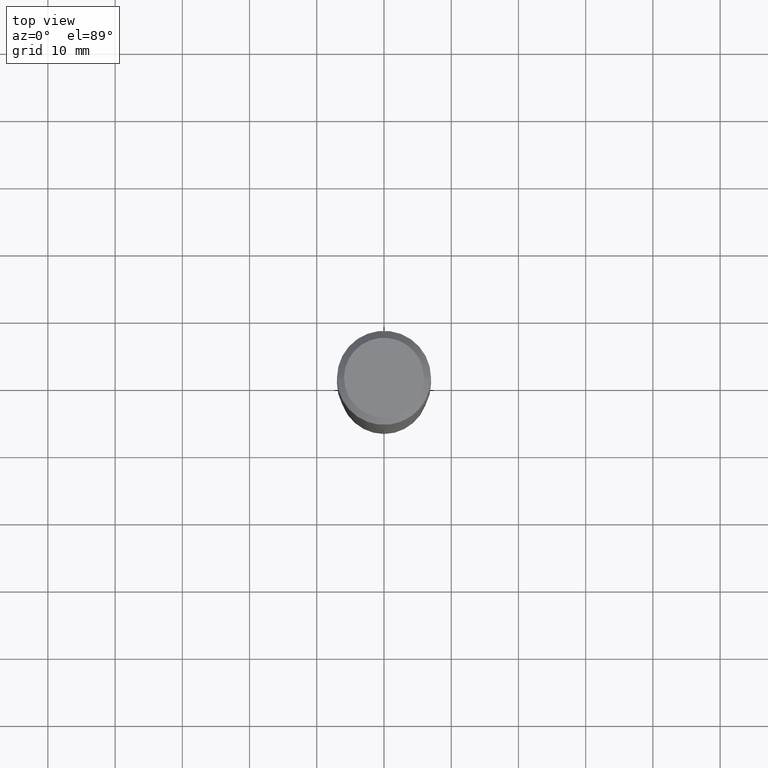
[diagram: clean part render]
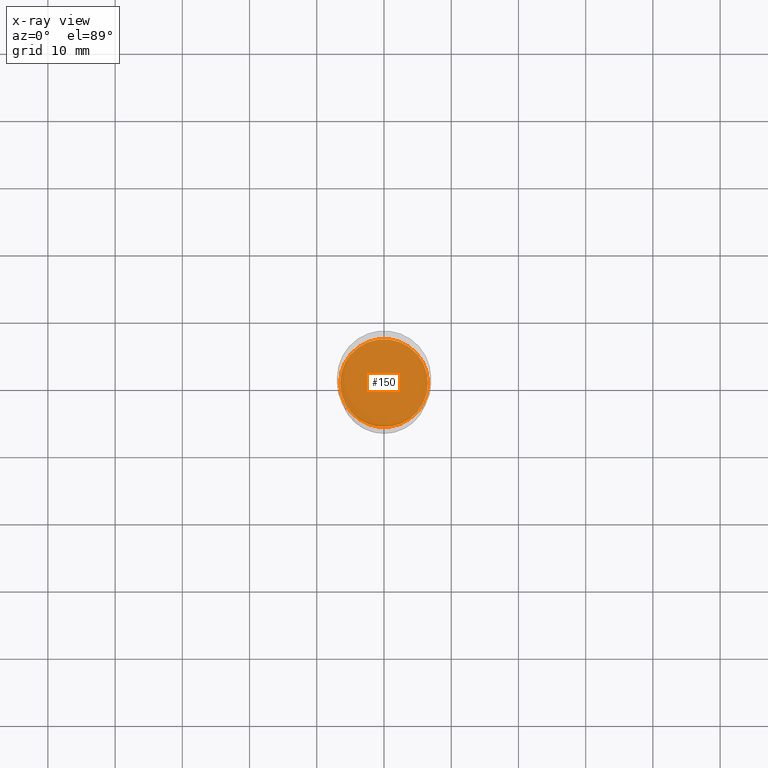
[diagram: x-ray — body ghosted, one internal face saturated and labeled with its STEP entity id]
A machine part, top view, then the same camera in x-ray: the body is ghosted and one INTERNAL B-rep face — a face not visible from any outside direction — is saturated and labeled: STEP entity #150.
In plain terms, the highlighted planar face has unit normal (-0, 0, 1).
Its self-contained STEP definition (entity closure, byte-faithful):
#11 = DIRECTION ( 'NONE',  ( -2.445468806185136597E-29, 3.491481338843145583E-15, 1.000000000000000000 ) ) ;
#17 = DIRECTION ( 'NONE',  ( 1.000000000000000000, -6.982962677686266711E-15, 0.000000000000000000 ) ) ;
#26 = ORIENTED_EDGE ( 'NONE', *, *, #167, .F. ) ;
#80 = AXIS2_PLACEMENT_3D ( 'NONE', #92, #11, #17 ) ;
#92 = CARTESIAN_POINT ( 'NONE',  ( 4.525095478964976833E-29, -6.460637069395356787E-15, -1.850400000000000045 ) ) ;
#114 = AXIS2_PLACEMENT_3D ( 'NONE', #285, #430, #132 ) ;
#132 = DIRECTION ( 'NONE',  ( 1.000000000000000000, -6.982962677686266711E-15, 0.000000000000000000 ) ) ;
#149 = EDGE_LOOP ( 'NONE', ( #157, #26 ) ) ;
#150 = ADVANCED_FACE ( 'NONE', ( #202 ), #152, .F. ) ;
#152 = PLANE ( 'NONE',  #294 ) ;
#157 = ORIENTED_EDGE ( 'NONE', *, *, #173, .F. ) ;
#167 = EDGE_CURVE ( 'NONE', #402, #444, #319, .T. ) ;
#173 = EDGE_CURVE ( 'NONE', #444, #402, #333, .T. ) ;
#202 = FACE_OUTER_BOUND ( 'NONE', #149, .T. ) ;
#206 = CARTESIAN_POINT ( 'NONE',  ( 8.640791961472701358E-29, -5.667254555480721292E-16, -1.850400000000000489 ) ) ;
#252 = CARTESIAN_POINT ( 'NONE',  ( -0.2572999999999999732, -4.629761383110508787E-15, -1.850400000000000045 ) ) ;
#259 = CARTESIAN_POINT ( 'NONE',  ( 0.2572999999999999732, -8.257353366364032158E-15, -1.850400000000000045 ) ) ;
#285 = CARTESIAN_POINT ( 'NONE',  ( 4.525095478964976833E-29, -6.460637069395356787E-15, -1.850400000000000045 ) ) ;
#294 = AXIS2_PLACEMENT_3D ( 'NONE', #206, #322, #471 ) ;
#319 = CIRCLE ( 'NONE', #80, 0.2572999999999999732 ) ;
#322 = DIRECTION ( 'NONE',  ( -2.438088387897960049E-29, 3.491481338843145188E-15, 1.000000000000000000 ) ) ;
#333 = CIRCLE ( 'NONE', #114, 0.2572999999999999732 ) ;
#402 = VERTEX_POINT ( 'NONE', #252 ) ;
#430 = DIRECTION ( 'NONE',  ( -2.445468806185136597E-29, 3.491481338843145583E-15, 1.000000000000000000 ) ) ;
#444 = VERTEX_POINT ( 'NONE', #259 ) ;
#471 = DIRECTION ( 'NONE',  ( 1.000000000000000000, -6.982962677686265922E-15, 4.876176775795935793E-29 ) ) ;